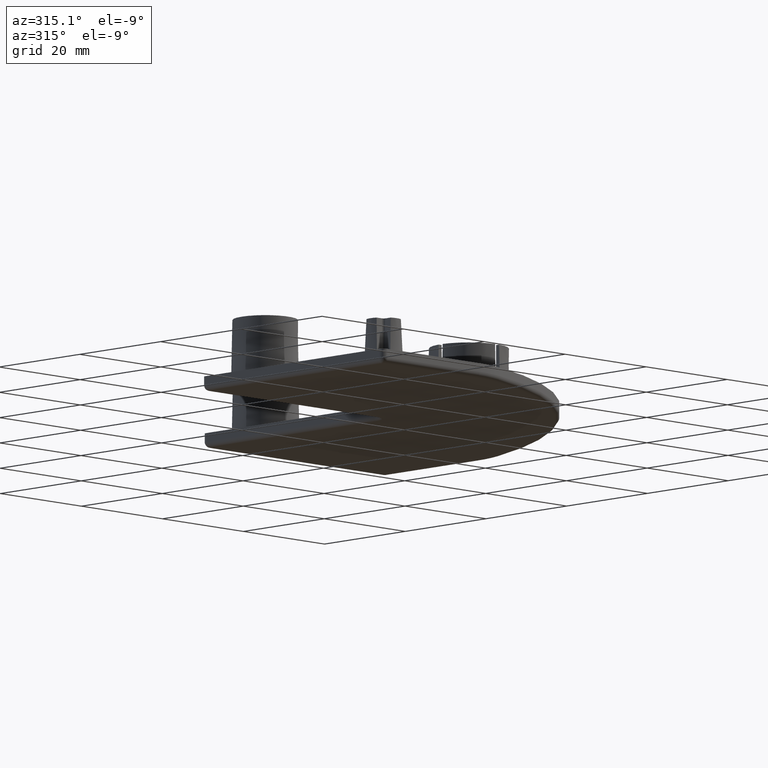
[diagram: clean part render]
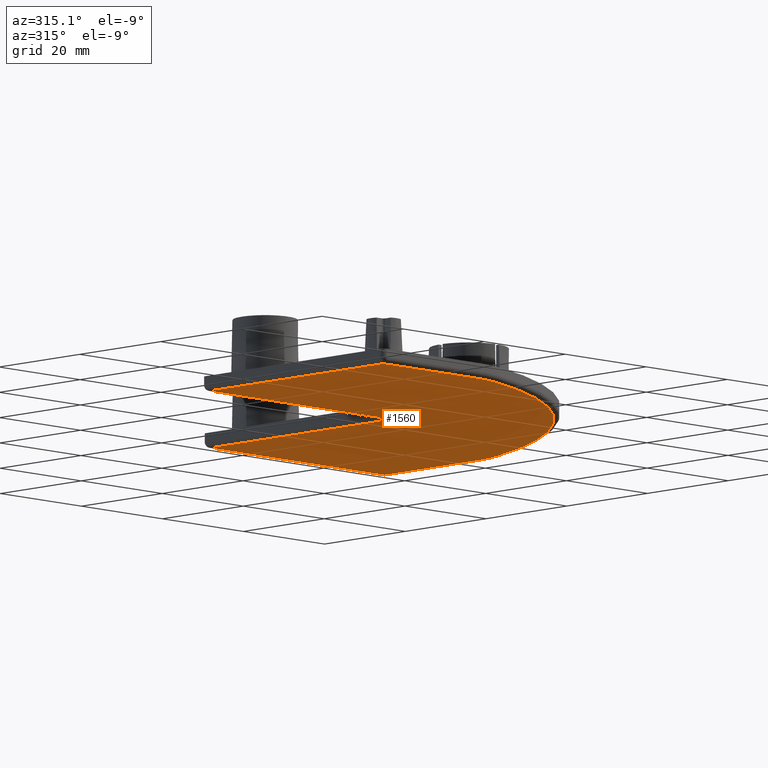
[diagram: same view with one face highlighted and labeled with its STEP entity id]
A machine part, auxiliary view. The second image highlights one B-rep face of the part: STEP entity #1560.
In plain terms, the highlighted planar face has unit normal (0, 0, 1).
Its self-contained STEP definition (entity closure, byte-faithful):
#153=CIRCLE('',#1726,18.9999999999999);
#156=CIRCLE('',#1730,89.);
#159=CIRCLE('',#1734,19.0000000000001);
#168=CIRCLE('',#1748,3.5);
#258=FACE_OUTER_BOUND('',#356,.T.);
#356=EDGE_LOOP('',(#1392,#1393,#1394,#1395,#1396,#1397,#1398,#1399,#1400,
#1401));
#458=LINE('',#2667,#576);
#459=LINE('',#2690,#577);
#462=LINE('',#2699,#580);
#464=LINE('',#2709,#582);
#465=LINE('',#2720,#583);
#468=LINE('',#2730,#586);
#576=VECTOR('',#2136,10.);
#577=VECTOR('',#2165,10.);
#580=VECTOR('',#2174,10.);
#582=VECTOR('',#2186,10.);
#583=VECTOR('',#2199,10.);
#586=VECTOR('',#2212,10.);
#723=VERTEX_POINT('',#2660);
#726=VERTEX_POINT('',#2665);
#728=VERTEX_POINT('',#2670);
#730=VERTEX_POINT('',#2676);
#732=VERTEX_POINT('',#2682);
#734=VERTEX_POINT('',#2688);
#737=VERTEX_POINT('',#2697);
#740=VERTEX_POINT('',#2707);
#742=VERTEX_POINT('',#2712);
#744=VERTEX_POINT('',#2718);
#926=EDGE_CURVE('',#726,#723,#458,.T.);
#928=EDGE_CURVE('',#728,#726,#153,.T.);
#931=EDGE_CURVE('',#730,#728,#156,.T.);
#934=EDGE_CURVE('',#732,#730,#159,.T.);
#937=EDGE_CURVE('',#734,#732,#459,.T.);
#942=EDGE_CURVE('',#737,#734,#462,.T.);
#947=EDGE_CURVE('',#740,#737,#464,.T.);
#949=EDGE_CURVE('',#742,#740,#168,.T.);
#952=EDGE_CURVE('',#744,#742,#465,.T.);
#958=EDGE_CURVE('',#723,#744,#468,.T.);
#1392=ORIENTED_EDGE('',*,*,#926,.F.);
#1393=ORIENTED_EDGE('',*,*,#928,.F.);
#1394=ORIENTED_EDGE('',*,*,#931,.F.);
#1395=ORIENTED_EDGE('',*,*,#934,.F.);
#1396=ORIENTED_EDGE('',*,*,#937,.F.);
#1397=ORIENTED_EDGE('',*,*,#942,.F.);
#1398=ORIENTED_EDGE('',*,*,#947,.F.);
#1399=ORIENTED_EDGE('',*,*,#949,.F.);
#1400=ORIENTED_EDGE('',*,*,#952,.F.);
#1401=ORIENTED_EDGE('',*,*,#958,.F.);
#1473=PLANE('',#1768);
#1560=ADVANCED_FACE('',(#258),#1473,.F.);
#1726=AXIS2_PLACEMENT_3D('',#2672,#2141,#2142);
#1730=AXIS2_PLACEMENT_3D('',#2678,#2149,#2150);
#1734=AXIS2_PLACEMENT_3D('',#2684,#2157,#2158);
#1748=AXIS2_PLACEMENT_3D('',#2714,#2191,#2192);
#1768=AXIS2_PLACEMENT_3D('',#2750,#2243,#2244);
#2136=DIRECTION('',(0.,1.,0.));
#2141=DIRECTION('center_axis',(0.,0.,1.));
#2142=DIRECTION('ref_axis',(0.988805195316911,-0.149212217040984,0.));
#2149=DIRECTION('center_axis',(0.,0.,1.));
#2150=DIRECTION('ref_axis',(0.707106781186547,-0.707106781186548,0.));
#2157=DIRECTION('center_axis',(0.,0.,1.));
#2158=DIRECTION('ref_axis',(0.149212217040983,-0.988805195316911,0.));
#2165=DIRECTION('',(1.,0.,0.));
#2174=DIRECTION('',(0.,-1.,0.));
#2186=DIRECTION('',(-1.,0.,0.));
#2191=DIRECTION('center_axis',(0.,0.,-1.));
#2192=DIRECTION('ref_axis',(0.707106781186548,-0.707106781186548,0.));
#2199=DIRECTION('',(0.,-1.,0.));
#2212=DIRECTION('',(-1.,0.,0.));
#2243=DIRECTION('center_axis',(0.,0.,1.));
#2244=DIRECTION('ref_axis',(1.,0.,0.));
#2660=CARTESIAN_POINT('',(21.5,66.5,-2.5));
#2665=CARTESIAN_POINT('',(21.5,43.7271458419169,-2.5));
#2667=CARTESIAN_POINT('',(21.5,45.0417599345795,-2.5));
#2670=CARTESIAN_POINT('',(20.6539571428571,38.1205568561514,-2.5));
#2672=CARTESIAN_POINT('Origin',(2.50000000000006,43.7271458419169,-2.5));
#2676=CARTESIAN_POINT('',(-38.1205568561515,-20.6539571428572,-2.5));
#2678=CARTESIAN_POINT('Origin',(-64.383,64.383,-2.5));
#2682=CARTESIAN_POINT('',(-43.7271458419169,-21.5,-2.5));
#2684=CARTESIAN_POINT('Origin',(-43.7271458419169,-2.49999999999986,-2.5));
#2688=CARTESIAN_POINT('',(-66.5,-21.5,-2.5));
#2690=CARTESIAN_POINT('',(-33.6553328555379,-21.5,-2.5));
#2697=CARTESIAN_POINT('',(-66.5,21.5,-2.5));
#2699=CARTESIAN_POINT('',(-66.5,1.04175993457949,-2.5));
#2707=CARTESIAN_POINT('',(-25.,21.5,-2.5));
#2709=CARTESIAN_POINT('',(-45.0417599345795,21.5,-2.5));
#2712=CARTESIAN_POINT('',(-21.5,25.,-2.5));
#2714=CARTESIAN_POINT('Origin',(-25.,25.,-2.5));
#2718=CARTESIAN_POINT('',(-21.5,66.5,-2.5));
#2720=CARTESIAN_POINT('',(-21.5,24.2917599345795,-2.5));
#2730=CARTESIAN_POINT('',(-22.5417599345795,66.5,-2.5));
#2750=CARTESIAN_POINT('Origin',(-23.583519869159,23.583519869159,-2.5));